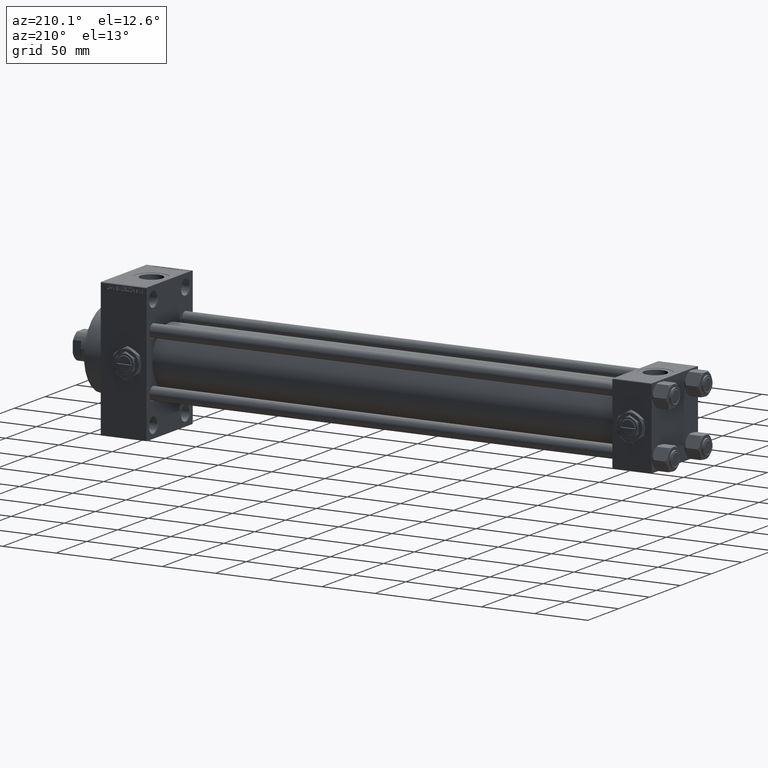
[diagram: clean part render]
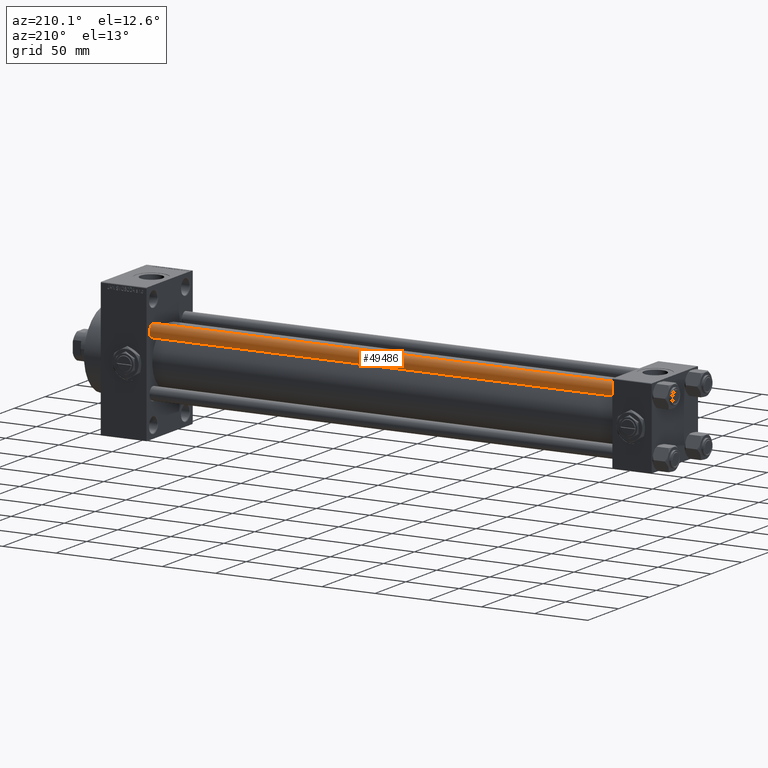
[diagram: same view with one face highlighted and labeled with its STEP entity id]
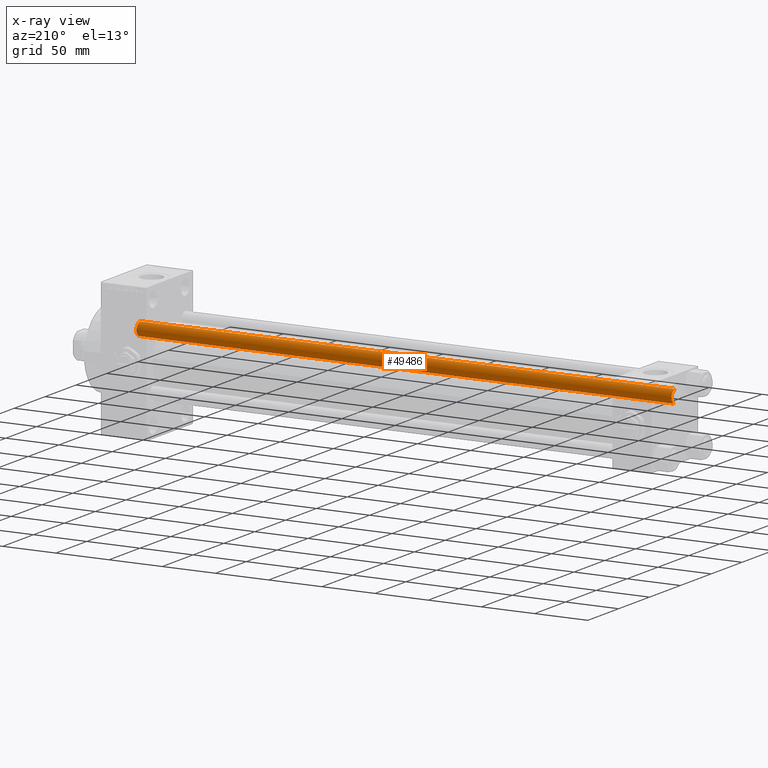
[diagram: x-ray of the same camera — body ghosted, the highlighted face saturated]
A machine part, auxiliary view. The second image highlights one B-rep face of the part: STEP entity #49486.
The next image is the same camera in x-ray: the body ghosted, the highlighted face saturated — about 0% of this face is hidden behind the body in this view.
In plain terms, the highlighted cylindrical surface (edge-blend (fillet) strip) has radius 6 mm, axis along (-1, -0, 0).
Its self-contained STEP definition (entity closure, byte-faithful):
#42 = DIRECTION ( 'NONE',  ( 0.000000000000000000, 0.000000000000000000, -1.000000000000000000 ) ) ;
#1281 = AXIS2_PLACEMENT_3D ( 'NONE', #37229, #44989, #18209 ) ;
#1337 = CARTESIAN_POINT ( 'NONE',  ( 6.000000000000000888, 7.347880794884120722E-16, 503.5000000000000568 ) ) ;
#1351 = DIRECTION ( 'NONE',  ( -0.000000000000000000, -0.000000000000000000, -1.000000000000000000 ) ) ;
#1678 = CARTESIAN_POINT ( 'NONE',  ( 6.000000000000000888, 7.347880794884120722E-16, 504.0000000000000000 ) ) ;
#2305 = ORIENTED_EDGE ( 'NONE', *, *, #45829, .T. ) ;
#2822 = ORIENTED_EDGE ( 'NONE', *, *, #36700, .T. ) ;
#4107 = VERTEX_POINT ( 'NONE', #1337 ) ;
#4771 = DIRECTION ( 'NONE',  ( 1.000000000000000000, 0.000000000000000000, 0.000000000000000000 ) ) ;
#5270 = EDGE_CURVE ( 'NONE', #10546, #28451, #10843, .T. ) ;
#5594 = DIRECTION ( 'NONE',  ( -1.000000000000000000, 0.000000000000000000, 0.000000000000000000 ) ) ;
#8429 = CARTESIAN_POINT ( 'NONE',  ( 6.000000000000000888, 7.347880794884120722E-16, 0.5000000000001669775 ) ) ;
#10480 = ORIENTED_EDGE ( 'NONE', *, *, #5270, .T. ) ;
#10546 = VERTEX_POINT ( 'NONE', #8429 ) ;
#10843 = CIRCLE ( 'NONE', #1281, 6.000000000000000888 ) ;
#14263 = EDGE_CURVE ( 'NONE', #42991, #28451, #20305, .T. ) ;
#16954 = DIRECTION ( 'NONE',  ( -0.000000000000000000, -0.000000000000000000, -1.000000000000000000 ) ) ;
#18209 = DIRECTION ( 'NONE',  ( 1.000000000000000000, 0.000000000000000000, 0.000000000000000000 ) ) ;
#20305 = LINE ( 'NONE', #38819, #27873 ) ;
#26541 = AXIS2_PLACEMENT_3D ( 'NONE', #34341, #42, #4771 ) ;
#27873 = VECTOR ( 'NONE', #35058, 1000.000000000000000 ) ;
#28451 = VERTEX_POINT ( 'NONE', #31978 ) ;
#31706 = EDGE_LOOP ( 'NONE', ( #2305, #2822, #10480, #41372 ) ) ;
#31978 = CARTESIAN_POINT ( 'NONE',  ( -6.000000000000000888, 0.000000000000000000, 0.5000000000001669775 ) ) ;
#32637 = FACE_OUTER_BOUND ( 'NONE', #31706, .T. ) ;
#34341 = CARTESIAN_POINT ( 'NONE',  ( 0.000000000000000000, 0.000000000000000000, 503.5000000000000568 ) ) ;
#35058 = DIRECTION ( 'NONE',  ( -0.000000000000000000, -0.000000000000000000, -1.000000000000000000 ) ) ;
#35648 = CARTESIAN_POINT ( 'NONE',  ( 0.000000000000000000, 0.000000000000000000, 504.0000000000000000 ) ) ;
#35976 = LINE ( 'NONE', #1678, #48955 ) ;
#36700 = EDGE_CURVE ( 'NONE', #4107, #10546, #35976, .T. ) ;
#37229 = CARTESIAN_POINT ( 'NONE',  ( 0.000000000000000000, 0.000000000000000000, 0.5000000000001669775 ) ) ;
#38819 = CARTESIAN_POINT ( 'NONE',  ( -6.000000000000000888, 0.000000000000000000, 504.0000000000000000 ) ) ;
#39429 = AXIS2_PLACEMENT_3D ( 'NONE', #35648, #1351, #5594 ) ;
#41194 = CARTESIAN_POINT ( 'NONE',  ( -6.000000000000000888, 0.000000000000000000, 503.5000000000000568 ) ) ;
#41372 = ORIENTED_EDGE ( 'NONE', *, *, #14263, .F. ) ;
#41714 = CIRCLE ( 'NONE', #26541, 6.000000000000000888 ) ;
#42991 = VERTEX_POINT ( 'NONE', #41194 ) ;
#44989 = DIRECTION ( 'NONE',  ( -0.000000000000000000, -0.000000000000000000, 1.000000000000000000 ) ) ;
#45829 = EDGE_CURVE ( 'NONE', #42991, #4107, #41714, .T. ) ;
#47662 = CYLINDRICAL_SURFACE ( 'NONE', #39429, 6.000000000000000888 ) ;
#48955 = VECTOR ( 'NONE', #16954, 1000.000000000000000 ) ;
#49486 = ADVANCED_FACE ( 'NONE', ( #32637 ), #47662, .T. ) ;